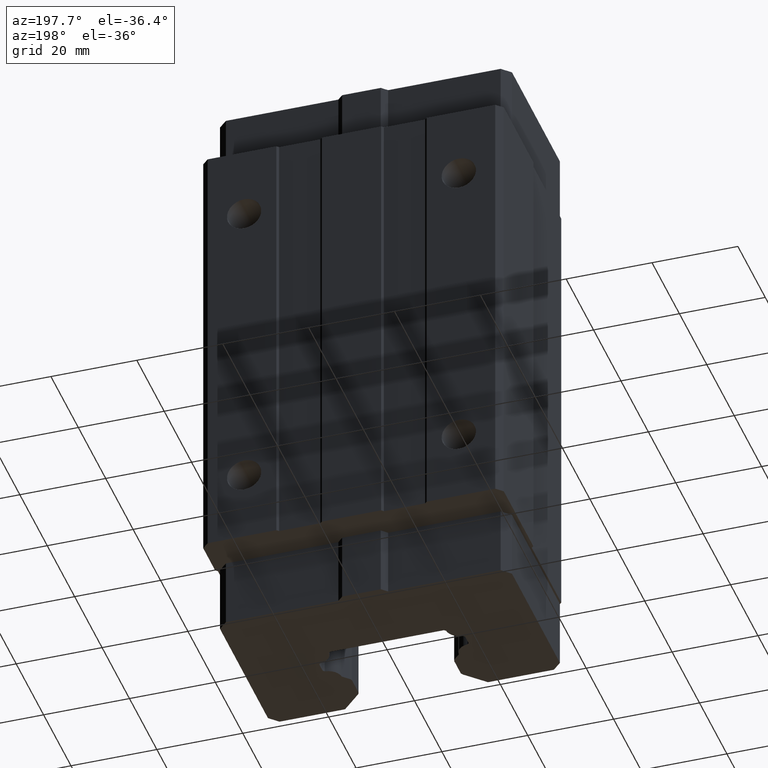
[diagram: clean part render]
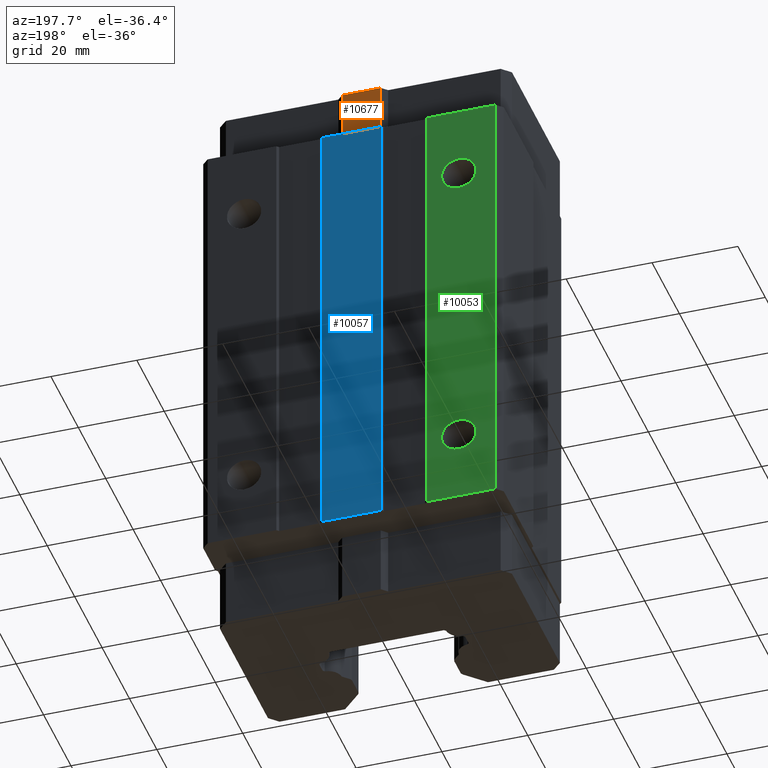
[diagram: same view with three faces highlighted in distinct colors, each labeled with its STEP entity id]
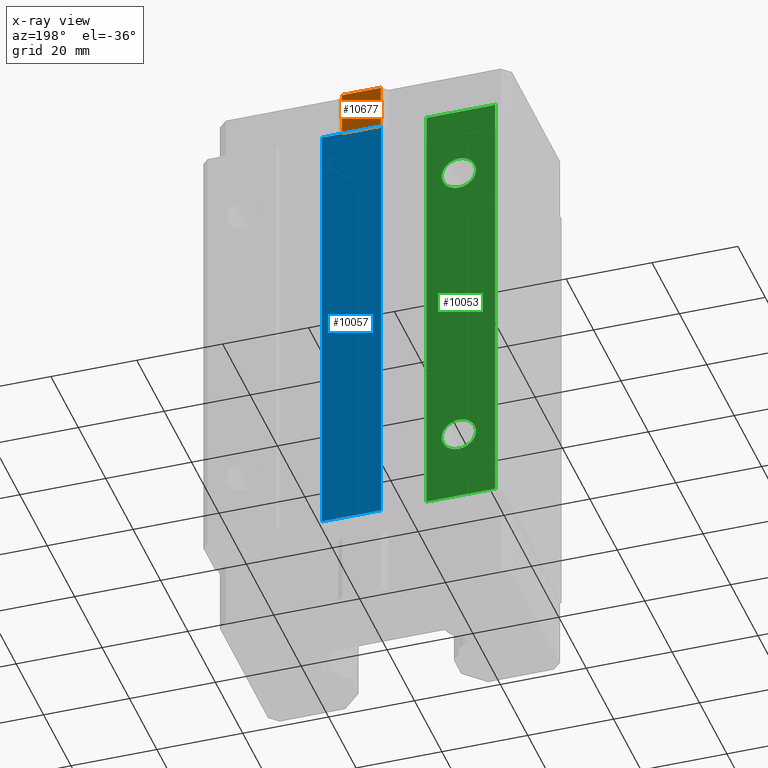
[diagram: x-ray of the same camera — body ghosted, the three highlighted faces saturated]
A machine part, auxiliary view with three faces highlighted in distinct colors.
The next image is the same camera in x-ray (body ghosted, the three faces saturated) — at least one of them is partly hidden behind the body in this view.
Their STEP definitions:

[orange] entity #10677 — the highlighted planar face has unit normal (0, 1, 0).
#661 = EDGE_CURVE ( 'NONE', #8704, #10110, #12884, .T. ) ;
#668 = EDGE_CURVE ( 'NONE', #8704, #10492, #12871, .T. ) ;
#1550 = CARTESIAN_POINT ( 'NONE',  ( 4.453520132771999800, 18.84575714773000100, 69.09999999999999400 ) ) ;
#3994 = DIRECTION ( 'NONE',  ( 0.0000000000000000000, 0.0000000000000000000, -1.000000000000000000 ) ) ;
#3995 = VECTOR ( 'NONE', #3994, 1000.000000000000000 ) ;
#3997 = CARTESIAN_POINT ( 'NONE',  ( -4.546479867228000200, 18.84575714773000100, 52.90000000000000600 ) ) ;
#3998 = LINE ( 'NONE', #3997, #3995 ) ;
#4216 = CARTESIAN_POINT ( 'NONE',  ( 4.453520132772029100, 18.84575714773003000, 52.90000000000000600 ) ) ;
#4217 = CARTESIAN_POINT ( 'NONE',  ( -4.546479867228000200, 18.84575714773000100, 52.90000000000000600 ) ) ;
#4364 = DIRECTION ( 'NONE',  ( -1.000000000000000000, 0.0000000000000000000, 0.0000000000000000000 ) ) ;
#4365 = VECTOR ( 'NONE', #4364, 1000.000000000000000 ) ;
#4366 = CARTESIAN_POINT ( 'NONE',  ( 4.453520132771999800, 18.84575714773000100, 52.90000000000000600 ) ) ;
#4367 = LINE ( 'NONE', #4366, #4365 ) ;
#4713 = CARTESIAN_POINT ( 'NONE',  ( -4.546479867228000200, 18.84575714773000100, 69.09999999999999400 ) ) ;
#5090 = DIRECTION ( 'NONE',  ( 0.0000000000000000000, 0.0000000000000000000, 1.000000000000000000 ) ) ;
#5091 = DIRECTION ( 'NONE',  ( 0.0000000000000000000, 1.000000000000000000, 0.0000000000000000000 ) ) ;
#5092 = CARTESIAN_POINT ( 'NONE',  ( 4.453520132771999800, 18.84575714773000100, 52.90000000000000600 ) ) ;
#5093 = AXIS2_PLACEMENT_3D ( 'NONE', #5092, #5091, #5090 ) ;
#5094 = PLANE ( 'NONE',  #5093 ) ;
#5095 = FACE_OUTER_BOUND ( 'NONE', #10543, .T. ) ;
#8704 = VERTEX_POINT ( 'NONE', #1550 ) ;
#9976 = EDGE_CURVE ( 'NONE', #10492, #10109, #3998, .T. ) ;
#10109 = VERTEX_POINT ( 'NONE', #4217 ) ;
#10110 = VERTEX_POINT ( 'NONE', #4216 ) ;
#10187 = EDGE_CURVE ( 'NONE', #10110, #10109, #4367, .T. ) ;
#10492 = VERTEX_POINT ( 'NONE', #4713 ) ;
#10495 = ORIENTED_EDGE ( 'NONE', *, *, #10187, .T. ) ;
#10543 = EDGE_LOOP ( 'NONE', ( #10657, #10495, #10614, #10770 ) ) ;
#10614 = ORIENTED_EDGE ( 'NONE', *, *, #9976, .F. ) ;
#10657 = ORIENTED_EDGE ( 'NONE', *, *, #661, .T. ) ;
#10677 = ADVANCED_FACE ( 'NONE', ( #5095 ), #5094, .T. ) ;
#10770 = ORIENTED_EDGE ( 'NONE', *, *, #668, .F. ) ;
#12868 = DIRECTION ( 'NONE',  ( -1.000000000000000000, 0.0000000000000000000, 0.0000000000000000000 ) ) ;
#12869 = VECTOR ( 'NONE', #12868, 1000.000000000000000 ) ;
#12870 = CARTESIAN_POINT ( 'NONE',  ( 0.0000000000000000000, 18.84575714773000100, 69.09999999999999400 ) ) ;
#12871 = LINE ( 'NONE', #12870, #12869 ) ;
#12881 = DIRECTION ( 'NONE',  ( 0.0000000000000000000, 0.0000000000000000000, -1.000000000000000000 ) ) ;
#12882 = VECTOR ( 'NONE', #12881, 1000.000000000000000 ) ;
#12883 = CARTESIAN_POINT ( 'NONE',  ( 4.453520132771999800, 18.84575714773000100, 52.90000000000000600 ) ) ;
#12884 = LINE ( 'NONE', #12883, #12882 ) ;

[blue] entity #10057 — the highlighted planar face has unit normal (0, 1, 0).
#3854 = CARTESIAN_POINT ( 'NONE',  ( -6.900000002899999700, 26.00000000000000400, 52.90000000000000600 ) ) ;
#3885 = DIRECTION ( 'NONE',  ( 0.0000000000000000000, 0.0000000000000000000, 1.000000000000000000 ) ) ;
#3886 = VECTOR ( 'NONE', #3885, 1000.000000000000000 ) ;
#3887 = CARTESIAN_POINT ( 'NONE',  ( -6.900000002899999700, 26.00000000000000400, -52.90000000000000600 ) ) ;
#3888 = LINE ( 'NONE', #3887, #3886 ) ;
#3918 = CARTESIAN_POINT ( 'NONE',  ( 6.900000002899981900, 25.99999999999998600, -52.90000000000000600 ) ) ;
#3950 = CARTESIAN_POINT ( 'NONE',  ( -6.900000002899999700, 26.00000000000000400, -52.90000000000000600 ) ) ;
#3975 = CARTESIAN_POINT ( 'NONE',  ( 6.900000002899981900, 25.99999999999998600, 52.90000000000000600 ) ) ;
#3976 = DIRECTION ( 'NONE',  ( 0.0000000000000000000, 0.0000000000000000000, -1.000000000000000000 ) ) ;
#3977 = VECTOR ( 'NONE', #3976, 1000.000000000000000 ) ;
#3978 = CARTESIAN_POINT ( 'NONE',  ( 6.900000002899999700, 26.00000000000000400, -52.90000000000000600 ) ) ;
#3979 = LINE ( 'NONE', #3978, #3977 ) ;
#4112 = DIRECTION ( 'NONE',  ( 0.0000000000000000000, 0.0000000000000000000, 1.000000000000000000 ) ) ;
#4113 = DIRECTION ( 'NONE',  ( 0.0000000000000000000, 1.000000000000000000, 0.0000000000000000000 ) ) ;
#4114 = CARTESIAN_POINT ( 'NONE',  ( 6.900000002899999700, 26.00000000000000400, -52.90000000000000600 ) ) ;
#4115 = AXIS2_PLACEMENT_3D ( 'NONE', #4114, #4113, #4112 ) ;
#4116 = PLANE ( 'NONE',  #4115 ) ;
#4117 = FACE_OUTER_BOUND ( 'NONE', #10047, .T. ) ;
#4170 = DIRECTION ( 'NONE',  ( -1.000000000000000000, 0.0000000000000000000, 0.0000000000000000000 ) ) ;
#4171 = VECTOR ( 'NONE', #4170, 1000.000000000000000 ) ;
#4172 = CARTESIAN_POINT ( 'NONE',  ( 0.0000000000000000000, 26.00000000000000400, 52.90000000000000600 ) ) ;
#4173 = LINE ( 'NONE', #4172, #4171 ) ;
#4174 = DIRECTION ( 'NONE',  ( -1.000000000000000000, 0.0000000000000000000, 0.0000000000000000000 ) ) ;
#4175 = VECTOR ( 'NONE', #4174, 1000.000000000000000 ) ;
#4176 = CARTESIAN_POINT ( 'NONE',  ( 0.0000000000000000000, 26.00000000000000400, -52.90000000000000600 ) ) ;
#4177 = LINE ( 'NONE', #4176, #4175 ) ;
#9905 = VERTEX_POINT ( 'NONE', #3854 ) ;
#9921 = EDGE_CURVE ( 'NONE', #9922, #9905, #3888, .T. ) ;
#9922 = VERTEX_POINT ( 'NONE', #3950 ) ;
#9950 = VERTEX_POINT ( 'NONE', #3918 ) ;
#9952 = EDGE_CURVE ( 'NONE', #9953, #9950, #3979, .T. ) ;
#9953 = VERTEX_POINT ( 'NONE', #3975 ) ;
#10047 = EDGE_LOOP ( 'NONE', ( #10058, #10059, #10061, #10062 ) ) ;
#10057 = ADVANCED_FACE ( 'NONE', ( #4117 ), #4116, .T. ) ;
#10058 = ORIENTED_EDGE ( 'NONE', *, *, #9952, .T. ) ;
#10059 = ORIENTED_EDGE ( 'NONE', *, *, #10060, .T. ) ;
#10060 = EDGE_CURVE ( 'NONE', #9950, #9922, #4177, .T. ) ;
#10061 = ORIENTED_EDGE ( 'NONE', *, *, #9921, .T. ) ;
#10062 = ORIENTED_EDGE ( 'NONE', *, *, #10063, .F. ) ;
#10063 = EDGE_CURVE ( 'NONE', #9953, #9905, #4173, .T. ) ;

[green] entity #10053 — the highlighted planar face has unit normal (0, 1, 0).
#818 = ORIENTED_EDGE ( 'NONE', *, *, #9975, .T. ) ;
#821 = ORIENTED_EDGE ( 'NONE', *, *, #10597, .T. ) ;
#3983 = DIRECTION ( 'NONE',  ( 0.0000000000000000000, 0.0000000000000000000, 1.000000000000000000 ) ) ;
#3984 = DIRECTION ( 'NONE',  ( 0.0000000000000000000, -1.000000000000000000, 0.0000000000000000000 ) ) ;
#3985 = CARTESIAN_POINT ( 'NONE',  ( -25.00000000000000000, 26.00000000000000400, 36.00000000000000700 ) ) ;
#3986 = AXIS2_PLACEMENT_3D ( 'NONE', #3985, #3984, #3983 ) ;
#3987 = CIRCLE ( 'NONE', #3986, 4.000000000000003600 ) ;
#3999 = DIRECTION ( 'NONE',  ( 0.0000000000000000000, 0.0000000000000000000, 1.000000000000000000 ) ) ;
#4000 = DIRECTION ( 'NONE',  ( 0.0000000000000000000, -1.000000000000000000, 0.0000000000000000000 ) ) ;
#4001 = CARTESIAN_POINT ( 'NONE',  ( -25.00000000000000000, 26.00000000000000400, -36.00000000000000700 ) ) ;
#4002 = AXIS2_PLACEMENT_3D ( 'NONE', #4001, #4000, #3999 ) ;
#4003 = CIRCLE ( 'NONE', #4002, 4.000000000000003600 ) ;
#4059 = CARTESIAN_POINT ( 'NONE',  ( -17.49999999999998600, 26.00000000000002100, 52.90000000000000600 ) ) ;
#4060 = DIRECTION ( 'NONE',  ( 0.0000000000000000000, 0.0000000000000000000, -1.000000000000000000 ) ) ;
#4061 = VECTOR ( 'NONE', #4060, 1000.000000000000000 ) ;
#4062 = CARTESIAN_POINT ( 'NONE',  ( -17.50000000000000000, 26.00000000000000400, -52.90000000000000600 ) ) ;
#4063 = LINE ( 'NONE', #4062, #4061 ) ;
#4064 = CARTESIAN_POINT ( 'NONE',  ( -17.49999999999998600, 26.00000000000002100, -52.90000000000000600 ) ) ;
#4122 = DIRECTION ( 'NONE',  ( 0.0000000000000000000, 0.0000000000000000000, 1.000000000000000000 ) ) ;
#4123 = DIRECTION ( 'NONE',  ( 0.0000000000000000000, 1.000000000000000000, 0.0000000000000000000 ) ) ;
#4124 = CARTESIAN_POINT ( 'NONE',  ( -17.50000000000000000, 26.00000000000000400, -52.90000000000000600 ) ) ;
#4125 = AXIS2_PLACEMENT_3D ( 'NONE', #4124, #4123, #4122 ) ;
#4126 = PLANE ( 'NONE',  #4125 ) ;
#4127 = FACE_OUTER_BOUND ( 'NONE', #10085, .T. ) ;
#4128 = FACE_BOUND ( 'NONE', #10067, .T. ) ;
#4129 = FACE_BOUND ( 'NONE', #10054, .T. ) ;
#4184 = DIRECTION ( 'NONE',  ( -1.000000000000000000, 0.0000000000000000000, 0.0000000000000000000 ) ) ;
#4185 = VECTOR ( 'NONE', #4184, 1000.000000000000000 ) ;
#4186 = CARTESIAN_POINT ( 'NONE',  ( 0.0000000000000000000, 26.00000000000000400, 52.90000000000000600 ) ) ;
#4187 = LINE ( 'NONE', #4186, #4185 ) ;
#4188 = CARTESIAN_POINT ( 'NONE',  ( -33.50000000000000000, 26.00000000000000400, 52.90000000000002000 ) ) ;
#4189 = DIRECTION ( 'NONE',  ( 0.0000000000000000000, 0.0000000000000000000, -1.000000000000000000 ) ) ;
#4190 = VECTOR ( 'NONE', #4189, 1000.000000000000000 ) ;
#4191 = CARTESIAN_POINT ( 'NONE',  ( -33.50000000000000000, 26.00000000000000400, -52.90000000000000600 ) ) ;
#4192 = LINE ( 'NONE', #4191, #4190 ) ;
#4193 = CARTESIAN_POINT ( 'NONE',  ( -33.50000000000000000, 26.00000000000000400, -52.90000000000000600 ) ) ;
#4194 = DIRECTION ( 'NONE',  ( -1.000000000000000000, 0.0000000000000000000, 0.0000000000000000000 ) ) ;
#4195 = VECTOR ( 'NONE', #4194, 1000.000000000000000 ) ;
#4196 = CARTESIAN_POINT ( 'NONE',  ( 0.0000000000000000000, 26.00000000000000400, -52.90000000000000600 ) ) ;
#4197 = LINE ( 'NONE', #4196, #4195 ) ;
#4941 = CARTESIAN_POINT ( 'NONE',  ( -25.00000000000000000, 26.00000000000000400, -32.00000000000000000 ) ) ;
#4942 = DIRECTION ( 'NONE',  ( 0.0000000000000000000, 0.0000000000000000000, 1.000000000000000000 ) ) ;
#4943 = DIRECTION ( 'NONE',  ( 0.0000000000000000000, -1.000000000000000000, 0.0000000000000000000 ) ) ;
#4944 = CARTESIAN_POINT ( 'NONE',  ( -25.00000000000000000, 26.00000000000000400, -36.00000000000000700 ) ) ;
#4945 = AXIS2_PLACEMENT_3D ( 'NONE', #4944, #4943, #4942 ) ;
#4946 = CIRCLE ( 'NONE', #4945, 4.000000000000003600 ) ;
#4947 = CARTESIAN_POINT ( 'NONE',  ( -25.00000000000000000, 26.00000000000000400, -40.00000000000000700 ) ) ;
#4978 = CARTESIAN_POINT ( 'NONE',  ( -25.00000000000000000, 26.00000000000000400, 40.00000000000000700 ) ) ;
#4979 = DIRECTION ( 'NONE',  ( 0.0000000000000000000, 0.0000000000000000000, 1.000000000000000000 ) ) ;
#4980 = DIRECTION ( 'NONE',  ( 0.0000000000000000000, -1.000000000000000000, 0.0000000000000000000 ) ) ;
#4981 = CARTESIAN_POINT ( 'NONE',  ( -25.00000000000000000, 26.00000000000000400, 36.00000000000000700 ) ) ;
#4982 = AXIS2_PLACEMENT_3D ( 'NONE', #4981, #4980, #4979 ) ;
#4983 = CIRCLE ( 'NONE', #4982, 4.000000000000003600 ) ;
#4984 = CARTESIAN_POINT ( 'NONE',  ( -25.00000000000000000, 26.00000000000000400, 32.00000000000000000 ) ) ;
#9975 = EDGE_CURVE ( 'NONE', #10595, #10598, #4003, .T. ) ;
#9982 = EDGE_CURVE ( 'NONE', #10609, #10612, #3987, .T. ) ;
#10014 = VERTEX_POINT ( 'NONE', #4064 ) ;
#10016 = EDGE_CURVE ( 'NONE', #10017, #10014, #4063, .T. ) ;
#10017 = VERTEX_POINT ( 'NONE', #4059 ) ;
#10053 = ADVANCED_FACE ( 'NONE', ( #4129, #4128, #4127 ), #4126, .T. ) ;
#10054 = EDGE_LOOP ( 'NONE', ( #821, #818 ) ) ;
#10067 = EDGE_LOOP ( 'NONE', ( #10083, #10084 ) ) ;
#10083 = ORIENTED_EDGE ( 'NONE', *, *, #10611, .T. ) ;
#10084 = ORIENTED_EDGE ( 'NONE', *, *, #9982, .T. ) ;
#10085 = EDGE_LOOP ( 'NONE', ( #10086, #10087, #10090, #10093 ) ) ;
#10086 = ORIENTED_EDGE ( 'NONE', *, *, #10016, .T. ) ;
#10087 = ORIENTED_EDGE ( 'NONE', *, *, #10088, .T. ) ;
#10088 = EDGE_CURVE ( 'NONE', #10014, #10089, #4197, .T. ) ;
#10089 = VERTEX_POINT ( 'NONE', #4193 ) ;
#10090 = ORIENTED_EDGE ( 'NONE', *, *, #10091, .F. ) ;
#10091 = EDGE_CURVE ( 'NONE', #10092, #10089, #4192, .T. ) ;
#10092 = VERTEX_POINT ( 'NONE', #4188 ) ;
#10093 = ORIENTED_EDGE ( 'NONE', *, *, #10094, .F. ) ;
#10094 = EDGE_CURVE ( 'NONE', #10017, #10092, #4187, .T. ) ;
#10595 = VERTEX_POINT ( 'NONE', #4947 ) ;
#10597 = EDGE_CURVE ( 'NONE', #10598, #10595, #4946, .T. ) ;
#10598 = VERTEX_POINT ( 'NONE', #4941 ) ;
#10609 = VERTEX_POINT ( 'NONE', #4984 ) ;
#10611 = EDGE_CURVE ( 'NONE', #10612, #10609, #4983, .T. ) ;
#10612 = VERTEX_POINT ( 'NONE', #4978 ) ;